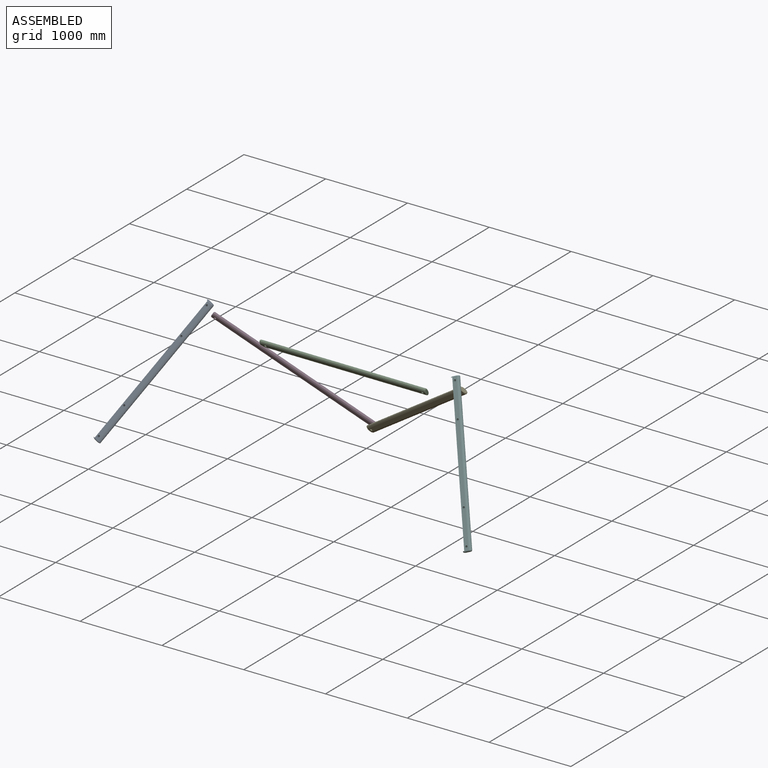
[diagram: assembled view]
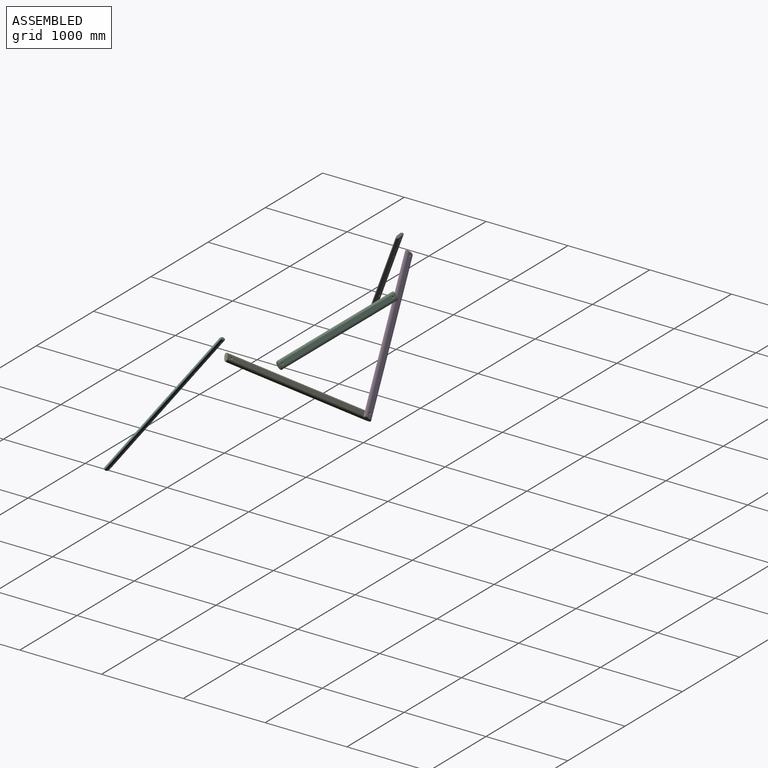
[diagram: assembled view, second angle]
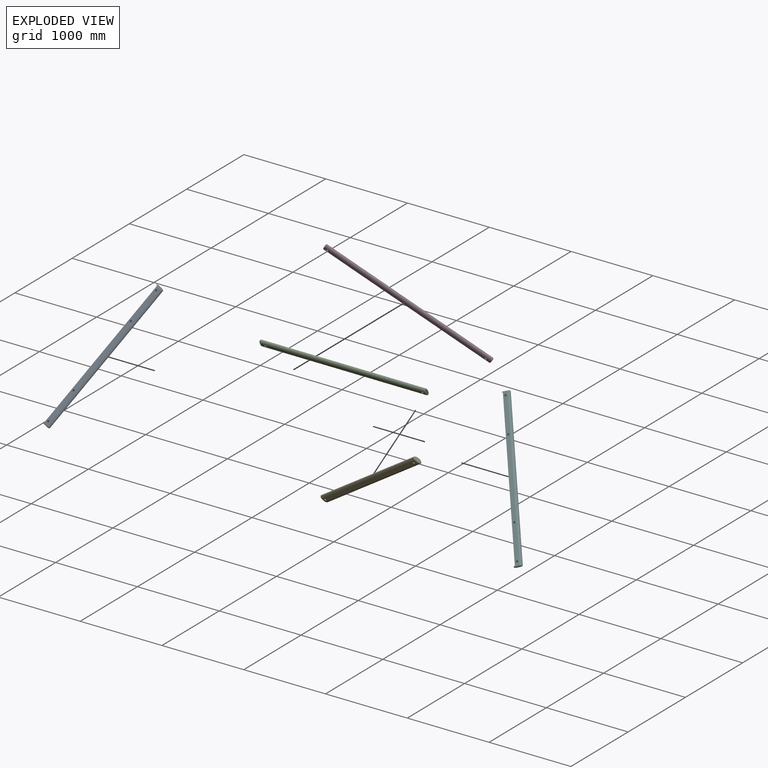
[diagram: exploded view]
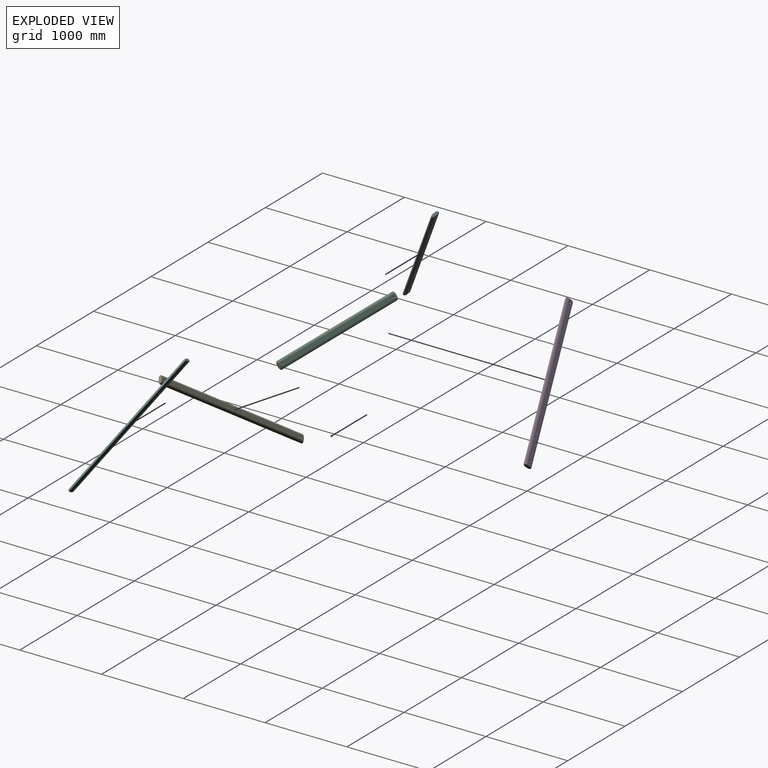
[diagram: exploded view, second angle]
ASSEMBLY  parts=6 mates=2
PART A: 18 faces, bbox 1828.8x45.7x101.6 mm
  f0: plane 1805.94x53.52mm, normal (0,1,0), area 94629.1mm2, adj f1,f3,f6,f10,f14,f15,f16,f17
  f1: extruded ~1805.94x43.25mm, area 124654.2mm2, adj f0,f2,f7,f11
  f2: plane 1805.94x53.06mm, normal (0,-1,0), area 93798.8mm2, adj f1,f3,f9,f13,f14,f15,f16,f17
  f3: extruded ~1805.94x43.25mm, area 124654.2mm2, adj f0,f2,f8,f12
  f4: plane 78.74x20.4mm, normal (-1,0,0), area 1396mm2, adj f10,f11,f12,f13
  f5: plane 78.74x20.4mm, normal (1,0,0), area 1396mm2, adj f6,f7,f8,f9
  f6: cylinder r=11.43mm len=53.52mm, axis (0,0,1), area 928.4mm2, adj f0,f5,f7,f8
  f7: bspline ~44.72x30.48mm, area 1025.7mm2, adj f1,f5,f6,f9
  f8: bspline ~45.04x31.95mm, area 1019.3mm2, adj f3,f5,f6,f9
  f9: cylinder r=11.43mm len=53.06mm, axis (0,0,-1), area 920.6mm2, adj f2,f5,f7,f8
  f10: cylinder r=11.43mm len=53.52mm, axis (0,0,-1), area 928.4mm2, adj f0,f4,f11,f12
  f11: bspline ~44.2x29.19mm, area 1019.4mm2, adj f1,f4,f10,f13
  f12: bspline ~44.46x29.71mm, area 1025.8mm2, adj f3,f4,f10,f13
  f13: cylinder r=11.43mm len=53.06mm, axis (0,0,1), area 920.6mm2, adj f2,f4,f11,f12
  f14: cylinder r=12.7mm len=43.25mm, axis (0,-1,0), area 3451.3mm2, adj f0,f2
  f15: cylinder r=12.7mm len=43.25mm, axis (0,-1,0), area 3451.3mm2, adj f0,f2
  f16: cylinder r=12.7mm len=43.25mm, axis (0,-1,0), area 3451.3mm2, adj f0,f2
  f17: cylinder r=12.7mm len=43.25mm, axis (0,-1,0), area 3451.3mm2, adj f0,f2
PART B: 3 faces, bbox 25.4x2.5x25.4 mm
  f0: cylinder r=12.7mm len=25.4mm, axis (0,1,0), area 202.7mm2, adj f1,f2
  f1: plane 25.4x25.4mm, normal (0,-1,0), area 506.7mm2, adj f0
  f2: plane 25.4x25.4mm, normal (0,1,0), area 506.7mm2, adj f0
PART C: 10 faces, bbox 2032x50.8x101.6 mm
  f0: plane 2024.74x53.53mm, normal (0,1,0), area 107164.6mm2, adj f1,f3,f6,f7,f8,f9
  f1: extruded ~2006.6x43.25mm, area 138504.6mm2, adj f0,f2,f6,f7
  f2: plane 2024.6x53.07mm, normal (0,-1,0), area 106229mm2, adj f1,f3,f6,f7,f8,f9
  f3: extruded ~2006.6x43.25mm, area 138504.6mm2, adj f0,f2,f6,f7
  f4: plane 76.2x25.41mm, normal (-1,0,0), area 1436.2mm2, adj f7
  f5: plane 76.2x25.41mm, normal (1,0,0), area 1421.5mm2, adj f6
  f6: bspline ~96.58x50.79mm, area 3477mm2, adj f0,f1,f2,f3,f5
  f7: bspline ~96.2x50.79mm, area 3263.4mm2, adj f0,f1,f2,f3,f4
  f8: cylinder r=12.7mm len=43.25mm, axis (0,-1,0), area 3451.3mm2, adj f0,f2
  f9: cylinder r=12.7mm len=43.25mm, axis (0,-1,0), area 3451.3mm2, adj f0,f2
PART D: same geometry as C
PART E: same geometry as C
PART F: same geometry as A
PLACE A rot(axis=(-0.4,-0.88,0.26),71.9deg) t=(-1880.55,-377.57,-58.26)mm
PLACE B rot(axis=(0,0.97,0.26),180deg) t=(-2287.99,210.7,-949.98)mm fixed
PLACE C rot(axis=(1,0,0),35deg) t=(453.38,-17.87,-482.34)mm
PLACE D rot(axis=(0.09,-0.96,-0.26),144deg) t=(-2056.98,-180.19,-229.61)mm
PLACE E rot(axis=(0.09,0.96,0.26),142.8deg) t=(-529.25,390.79,-1310.17)mm
PLACE F rot(axis=(-0.18,-0.94,0.28),117.9deg) t=(1142.85,-354.56,57.26)mm
MATE revolute D.f9 <-> B.f0  axis (0,-0.87,-0.5) through (-493.67,397.96,-1274.32)mm
MATE revolute B.f0 <-> E.f8  axis (0,-0.87,-0.5) through (-493.67,395.76,-1275.59)mm
